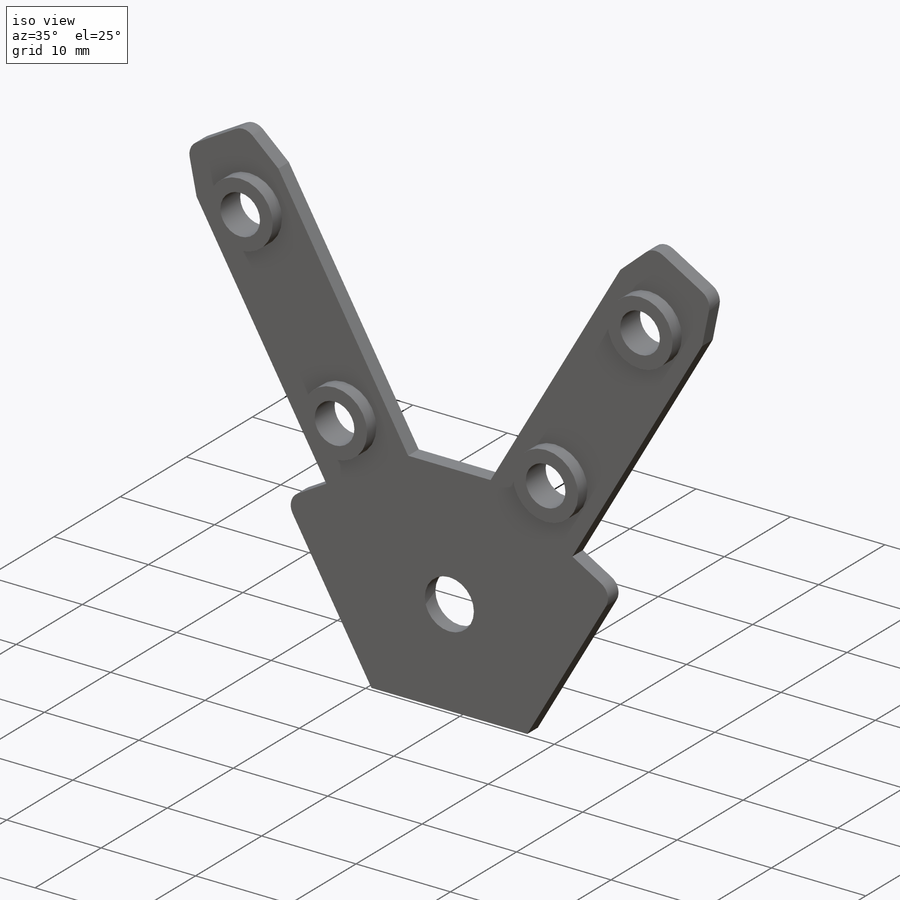
[diagram: iso view]
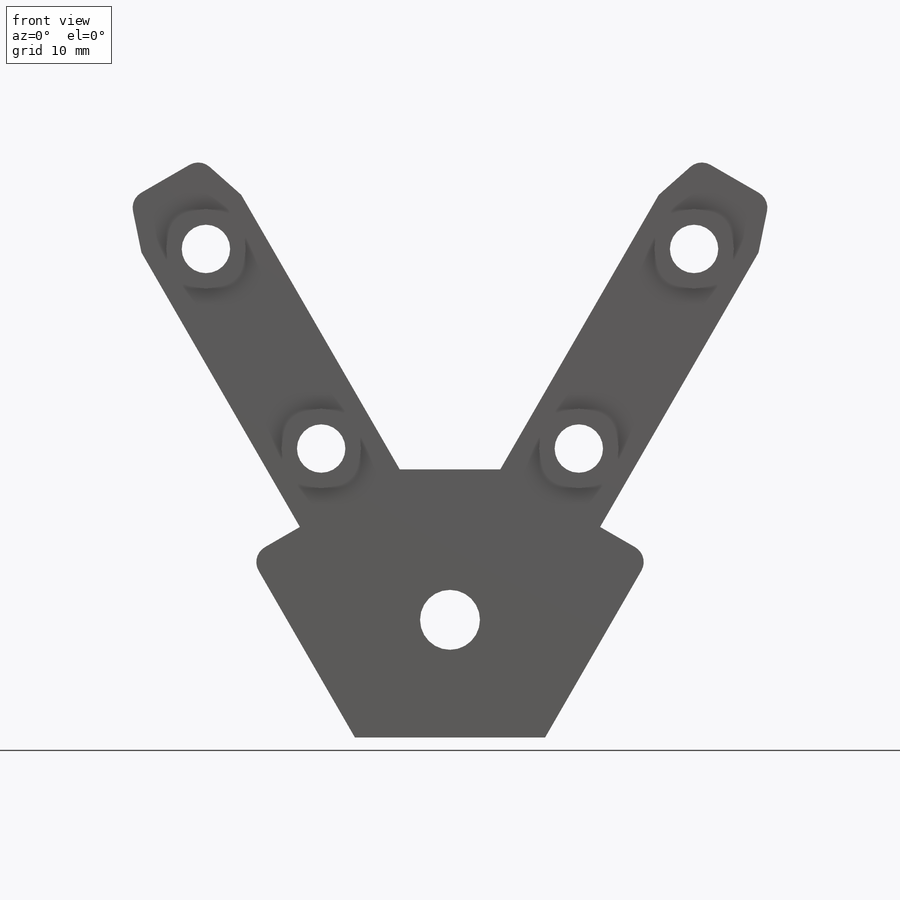
[diagram: front view]
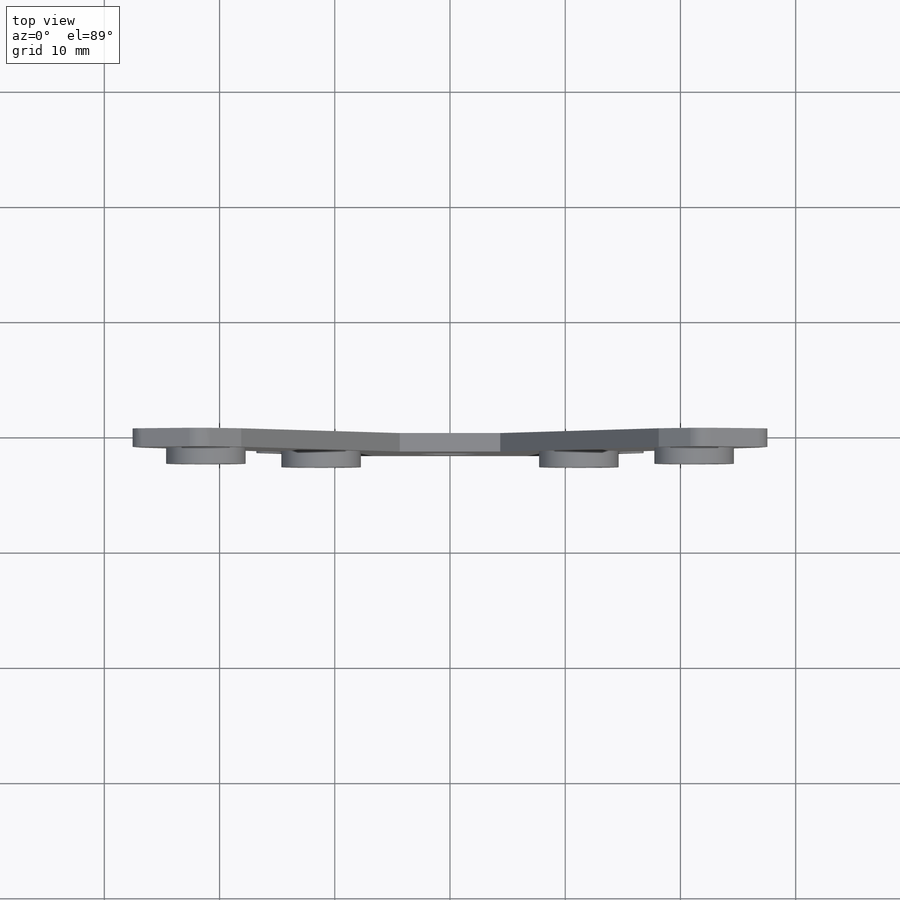
[diagram: top view]
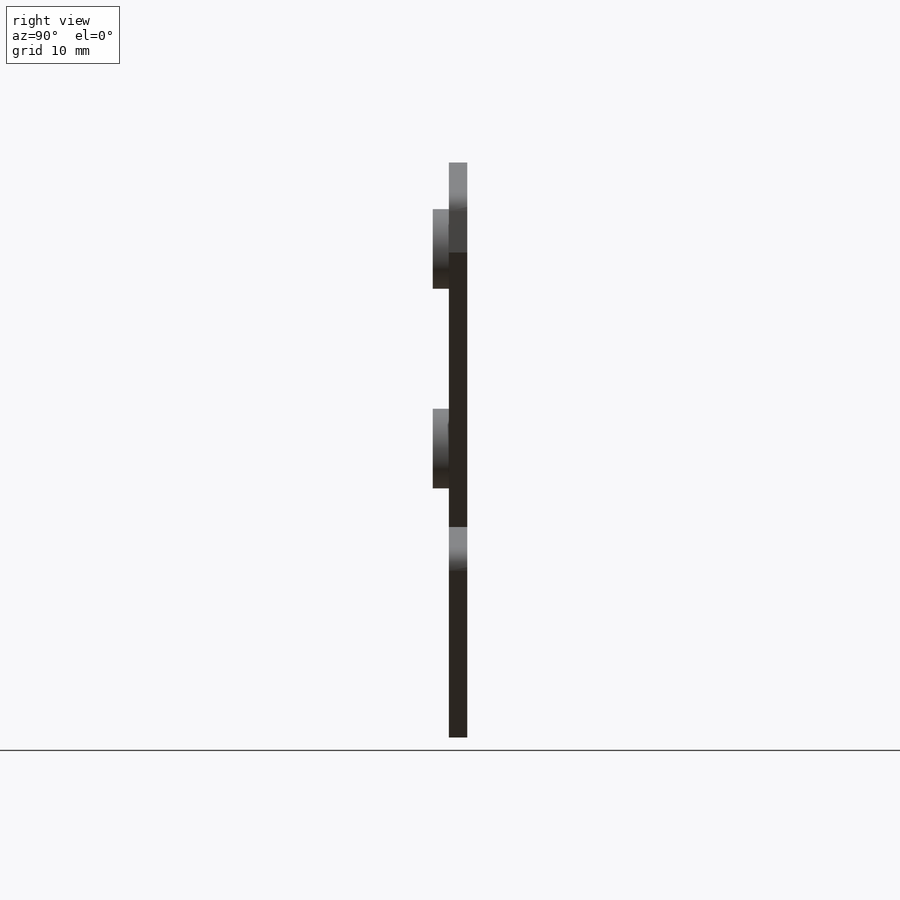
[diagram: right view]
SOLIDWORKS PART (.sldprt)
format: sldprt  version: not decoded by parser v0  size: 588,800 bytes
history: native  units: mm
features: sketch x4, thread x4, extrude x2, material x1, hole x1 (+13 scaffold rows collapsed)
feature tree (25):
  scaffold x13  (default folders/planes/origin — collapsed)
  material  "Plain Carbon Steel"
  sketch  "Sketch1"  dims[c1.D4=5.2mm c1.D8=1.5mm c1.D9=~6.07107mm c1.D10=~6.07107mm c1.D11=6.9mm c1.D13=1.5mm c2.D8=1.5mm c2.D1=5.2mm c2.D11=1.5mm c3.D1=20.0mm c3.D2=20.0mm c3.D3=10.0mm c3.D5=4.5mm c3.D6=83.97mm c3.D7=7.0mm c3.D9=20.0mm c3.D10=14.95mm c4.D9=10.0mm c4.D10=32.0mm c4.D11=4.5mm c4.D12=7.0mm c4.D3=10.0mm c4.D7=7.0mm c4.D6=32.0mm c4.D1=42.0mm c5.D1=30.0deg c5.D2=10.0mm c5.D3=~67.916386mm c6.D3=30.0deg c6.D4=5.0mm c6.D5=32.0mm c6.D6=4.5mm c6.D7=7.0mm c6.D8=10.21mm c6.D9=2.25mm c6.D10=23.27mm]
  extrude  "Boss-Extrude1"  Depth=1.6mm
  sketch  "Sketch2"  dims[c1.D1=6.9mm c1.D3=6.9mm c1.D5=5.2mm c2.D1=6.9mm c2.D2=20.0mm c2.D3=14.95mm c2.D4=20.0mm c2.D5=14.95mm c3.D2=18.46mm]
  extrude  "Boss-Extrude2"  Depth=1.4mm
  hole  "M5x0.8 Tapped Hole1"  [1 undecoded]
  sketch  "Sketch4"
  thread  "Hole Thread3"  Diameter=5mm  [1 undecoded]
  thread  "Hole Thread5"  Diameter=5mm  [1 undecoded]
  thread  "Hole Thread6"  Diameter=5mm  [1 undecoded]
  thread  "Hole Thread7"  Diameter=5mm  [1 undecoded]
  sketch  "Sketch3"  dims[hole-wizard template sketch: 61 standard entries collapsed; hole parameters above]
decode coverage: 9 of 11 modeling features carry decoded parameters
note: ~ marks probable driven/reference dimensions
note: 5 parameter values undecoded
note: suppression state not decoded; provenance and decode notes live in map.json
